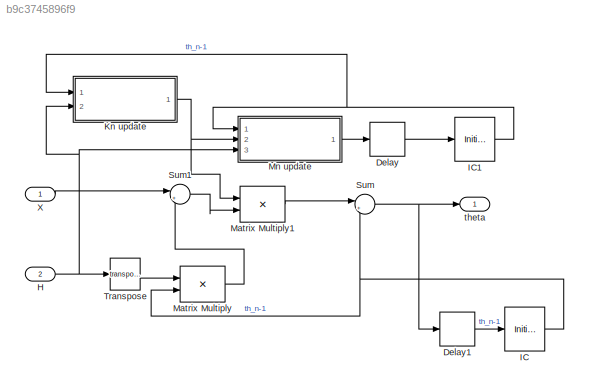
MODEL slx_b9c3745896f9
KIND model
CONFIG AbsTol = auto
CONFIG EnableMultiTasking = off
CONFIG FixedStep = auto
CONFIG MaxStep = auto
CONFIG MinStep = auto
CONFIG RelTol = 1e-3
CONFIG SampleTimeConstraint = Unconstrained
CONFIG SolverName = VariableStepAuto
CONFIG StartTime = 0.0
CONFIG StopTime = 10.0
BLOCK [Delay] Delay
  DelayLength = 1
  InitialCondition = 0
  InputPortMap = u0
  Ports = [1, 1]
BLOCK [Delay] Delay1
  DelayLength = 1
  InitialCondition = 0
  InputPortMap = u0
  Ports = [1, 1]
BLOCK [Inport] H
  Port = 2
  PortDimensions = size(H, 2)
BLOCK [InitialCondition] IC
  Value = theta_AP
BLOCK [InitialCondition] IC1
  Value = M_AP
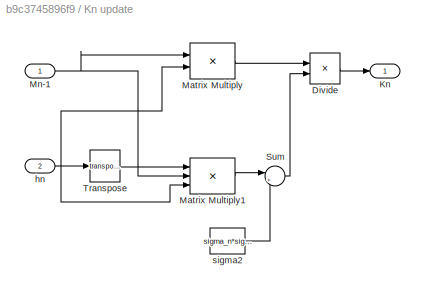
BLOCK [SubSystem] Kn update
  Ports = [2, 1]
  RequestExecContextInheritance = off
BLOCK [Product] Kn update/Divide
  Inputs = */
  Ports = [2, 1]
BLOCK [Outport] Kn update/Kn
BLOCK [Product] Kn update/Matrix Multiply
  Multiplication = Matrix(*)
  Ports = [2, 1]
BLOCK [Product] Kn update/Matrix Multiply1
  Inputs = 3
  Multiplication = Matrix(*)
  Ports = [3, 1]
BLOCK [Inport] Kn update/Mn-1
BLOCK [Sum] Kn update/Sum
  Inputs = |++
  Ports = [2, 1]
BLOCK [Math] Kn update/Transpose
  Operator = transpose
  Ports = [1, 1]
BLOCK [Inport] Kn update/hn
  IconDisplay = Port number and signal name
  Port = 2
BLOCK [Constant] Kn update/sigma2
  Value = sigma_n*sigma_n
BLOCK [Product] Matrix Multiply
  Multiplication = Matrix(*)
  Ports = [2, 1]
BLOCK [Product] Matrix Multiply1
  Multiplication = Matrix(*)
  Ports = [2, 1]
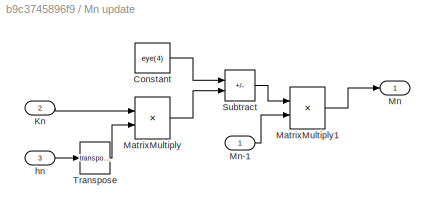
BLOCK [SubSystem] Mn update
  Ports = [3, 1]
  RequestExecContextInheritance = off
BLOCK [Constant] Mn update/Constant
  Value = eye(4)
BLOCK [Inport] Mn update/Kn
  Port = 2
BLOCK [Product] Mn update/MatrixMultiply
  Multiplication = Matrix(*)
  Ports = [2, 1]
BLOCK [Product] Mn update/MatrixMultiply1
  Multiplication = Matrix(*)
  Ports = [2, 1]
BLOCK [Outport] Mn update/Mn
BLOCK [Inport] Mn update/Mn-1
BLOCK [Sum] Mn update/Subtract
  IconShape = rectangular
  Inputs = +-
  Ports = [2, 1]
BLOCK [Math] Mn update/Transpose
  Operator = transpose
  Ports = [1, 1]
BLOCK [Inport] Mn update/hn
  Port = 3
BLOCK [Sum] Sum
  Inputs = |++
  Ports = [2, 1]
BLOCK [Sum] Sum1
  Inputs = |+-
  Ports = [2, 1]
BLOCK [Math] Transpose
  Operator = transpose
  Ports = [1, 1]
BLOCK [Inport] X
  PortDimensions = size(x, 2)
BLOCK [Outport] theta
  SampleTime = DT
LINE Delay1:1 -> IC:1
LINE Delay:1 -> IC1:1
NET H:1 -> Kn update:2, Mn update:3, Transpose:1
NET IC1:1 -> Kn update:1, Mn update:1
NET IC:1 -> Matrix Multiply:2, Sum:2
LINE Kn update/Divide:1 -> Kn update/Kn:1
LINE Kn update/Matrix Multiply1:1 -> Kn update/Sum:1
LINE Kn update/Matrix Multiply:1 -> Kn update/Divide:1
NET Kn update/Mn-1:1 -> Kn update/Matrix Multiply1:2, Kn update/Matrix Multiply:1
LINE Kn update/Sum:1 -> Kn update/Divide:2
LINE Kn update/Transpose:1 -> Kn update/Matrix Multiply1:1
NET Kn update/hn:1 -> Kn update/Matrix Multiply1:3, Kn update/Matrix Multiply:2, Kn update/Transpose:1
LINE Kn update/sigma2:1 -> Kn update/Sum:2
NET Kn update:1 -> Matrix Multiply1:1, Mn update:2
LINE Matrix Multiply1:1 -> Sum:1
LINE Matrix Multiply:1 -> Sum1:2
LINE Mn update/Constant:1 -> Mn update/Subtract:1
LINE Mn update/Kn:1 -> Mn update/MatrixMultiply:1
LINE Mn update/MatrixMultiply1:1 -> Mn update/Mn:1
LINE Mn update/MatrixMultiply:1 -> Mn update/Subtract:2
LINE Mn update/Mn-1:1 -> Mn update/MatrixMultiply1:2
LINE Mn update/Subtract:1 -> Mn update/MatrixMultiply1:1
LINE Mn update/Transpose:1 -> Mn update/MatrixMultiply:2
LINE Mn update/hn:1 -> Mn update/Transpose:1
LINE Mn update:1 -> Delay:1
LINE Sum1:1 -> Matrix Multiply1:2
NET Sum:1 -> Delay1:1, theta:1
LINE Transpose:1 -> Matrix Multiply:1
LINE X:1 -> Sum1:1
note: NET lines group one-source signal fan-out (src -> all destinations, sorted); 1:1 wires keep LINE
